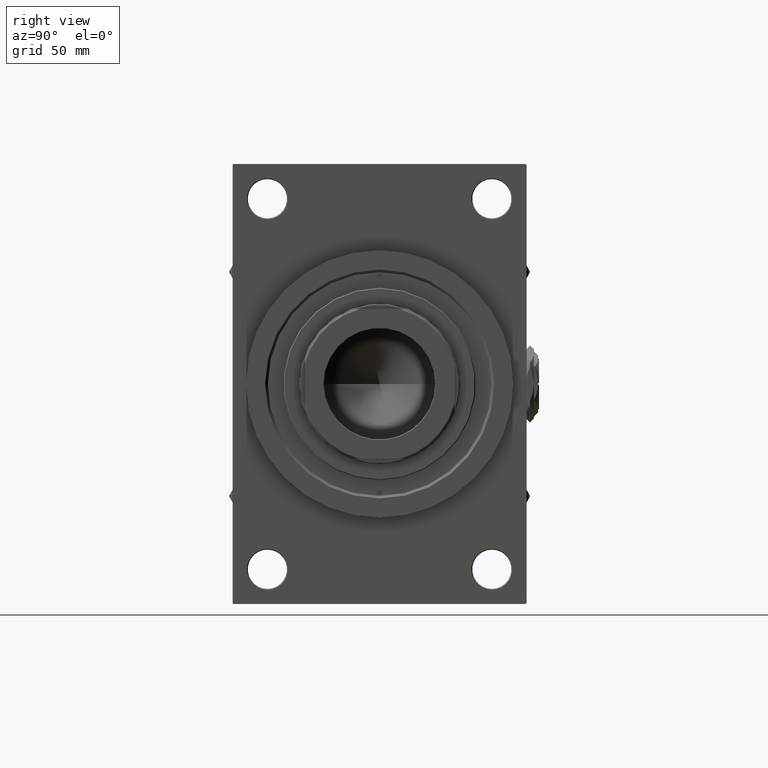
[diagram: clean part render]
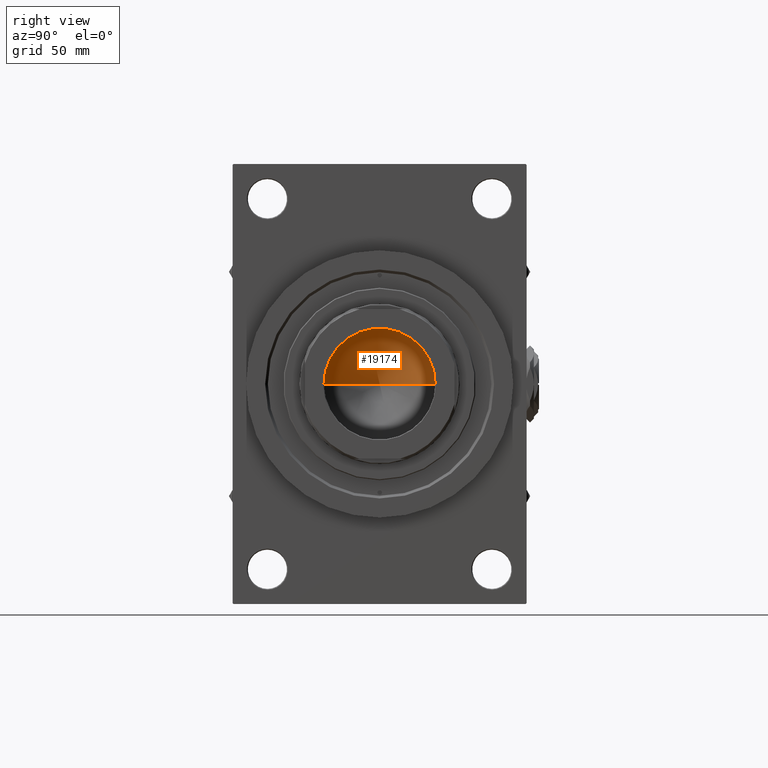
[diagram: same view with one face highlighted and labeled with its STEP entity id]
A machine part, right view. The second image highlights one B-rep face of the part: STEP entity #19174.
In plain terms, the highlighted conical surface has half-angle 59 deg.
Its self-contained STEP definition (entity closure, byte-faithful):
#515 = EDGE_LOOP ( 'NONE', ( #43083, #43000, #40778 ) ) ;
#883 = CARTESIAN_POINT ( 'NONE',  ( -31.24999999999998579, 3.827021247335477324E-15, 106.9999999999999858 ) ) ;
#4515 = VERTEX_POINT ( 'NONE', #46626 ) ;
#4929 = DIRECTION ( 'NONE',  ( -0.8571673007021118895, 1.049727191138618079E-16, 0.5150380749100549327 ) ) ;
#5589 = CARTESIAN_POINT ( 'NONE',  ( -31.24999999999998579, 3.827021247335477324E-15, 106.9999999999999858 ) ) ;
#6877 = EDGE_CURVE ( 'NONE', #4515, #26477, #45478, .T. ) ;
#11791 = CARTESIAN_POINT ( 'NONE',  ( 31.24999999999998579, 0.000000000000000000, 106.9999999999999858 ) ) ;
#16963 = VECTOR ( 'NONE', #30778, 1000.000000000000000 ) ;
#19174 = ADVANCED_FACE ( 'NONE', ( #37638 ), #22704, .F. ) ;
#22046 = EDGE_CURVE ( 'NONE', #47844, #26477, #34930, .T. ) ;
#22704 = CONICAL_SURFACE ( 'NONE', #23544, 31.24999999999998579, 1.029744258676653645 ) ;
#23544 = AXIS2_PLACEMENT_3D ( 'NONE', #30274, #49780, #38381 ) ;
#26477 = VERTEX_POINT ( 'NONE', #11791 ) ;
#26741 = CARTESIAN_POINT ( 'NONE',  ( 0.000000000000000000, 0.000000000000000000, 106.9999999999999858 ) ) ;
#30274 = CARTESIAN_POINT ( 'NONE',  ( 0.000000000000000000, 0.000000000000000000, 106.9999999999999858 ) ) ;
#30778 = DIRECTION ( 'NONE',  ( 0.8571673007021118895, 0.000000000000000000, 0.5150380749100549327 ) ) ;
#34281 = EDGE_CURVE ( 'NONE', #4515, #47844, #43948, .T. ) ;
#34930 = CIRCLE ( 'NONE', #37400, 31.24999999999998579 ) ;
#37400 = AXIS2_PLACEMENT_3D ( 'NONE', #26741, #43202, #38388 ) ;
#37638 = FACE_OUTER_BOUND ( 'NONE', #515, .T. ) ;
#38381 = DIRECTION ( 'NONE',  ( 1.000000000000000000, 0.000000000000000000, 0.000000000000000000 ) ) ;
#38388 = DIRECTION ( 'NONE',  ( 1.000000000000000000, 0.000000000000000000, 0.000000000000000000 ) ) ;
#40778 = ORIENTED_EDGE ( 'NONE', *, *, #22046, .T. ) ;
#41759 = VECTOR ( 'NONE', #4929, 1000.000000000000000 ) ;
#42675 = CARTESIAN_POINT ( 'NONE',  ( 31.24999999999998579, 0.000000000000000000, 106.9999999999999858 ) ) ;
#43000 = ORIENTED_EDGE ( 'NONE', *, *, #34281, .T. ) ;
#43083 = ORIENTED_EDGE ( 'NONE', *, *, #6877, .F. ) ;
#43202 = DIRECTION ( 'NONE',  ( -0.000000000000000000, -0.000000000000000000, 1.000000000000000000 ) ) ;
#43948 = LINE ( 'NONE', #883, #41759 ) ;
#45478 = LINE ( 'NONE', #42675, #16963 ) ;
#46626 = CARTESIAN_POINT ( 'NONE',  ( -2.278004804806631044E-14, 0.000000000000000000, 88.22310565538870719 ) ) ;
#47844 = VERTEX_POINT ( 'NONE', #5589 ) ;
#49780 = DIRECTION ( 'NONE',  ( -0.000000000000000000, -0.000000000000000000, 1.000000000000000000 ) ) ;